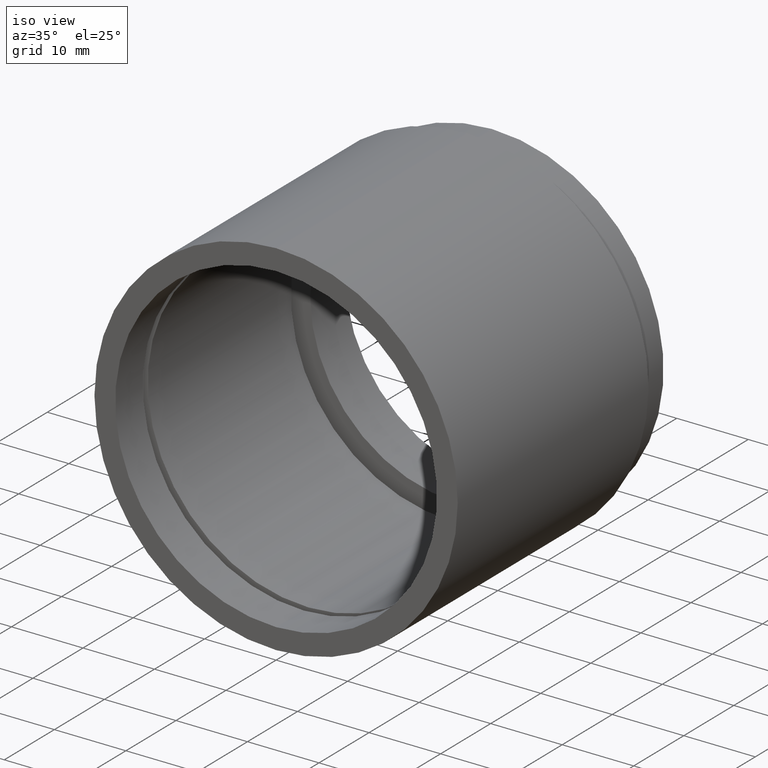
[diagram: clean part render]
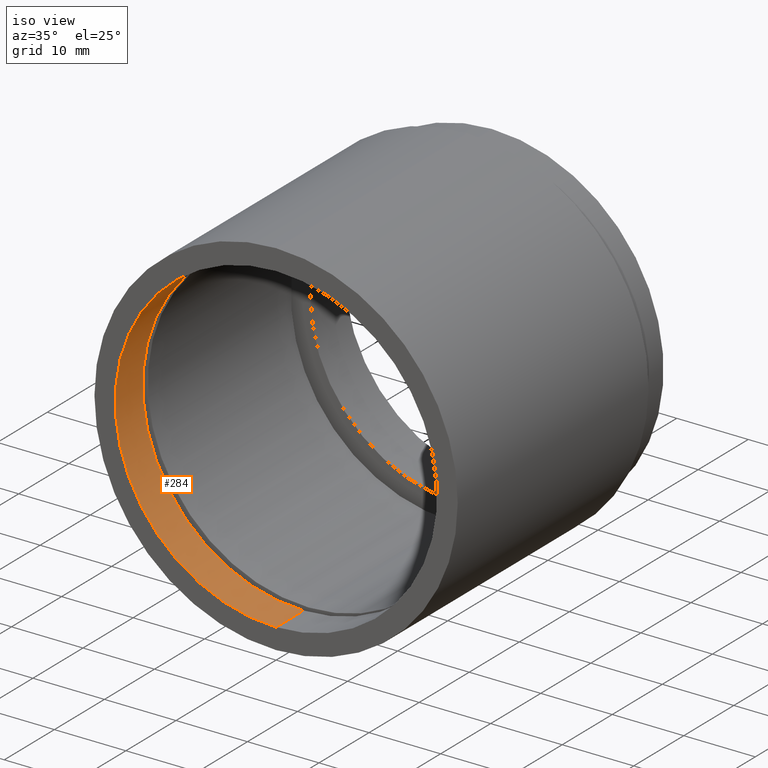
[diagram: same view with one face highlighted and labeled with its STEP entity id]
A machine part, iso view. The second image highlights one B-rep face of the part: STEP entity #284.
In plain terms, the highlighted cylindrical surface (partial cylindrical patch) has radius 22.5 mm, axis along (-0, 1, -0).
Its self-contained STEP definition (entity closure, byte-faithful):
#6 = CARTESIAN_POINT ( 'NONE',  ( 0.0000000000000000000, 5.499999999999976900, 22.50000000000002100 ) ) ;
#24 = ORIENTED_EDGE ( 'NONE', *, *, #218, .T. ) ;
#61 = VECTOR ( 'NONE', #613, 1000.000000000000000 ) ;
#77 = DIRECTION ( 'NONE',  ( -0.0000000000000000000, 1.000000000000000000, -0.0000000000000000000 ) ) ;
#96 = CARTESIAN_POINT ( 'NONE',  ( 0.0000000000000000000, 161.3761669434274500, 0.0000000000000000000 ) ) ;
#100 = LINE ( 'NONE', #370, #61 ) ;
#109 = CYLINDRICAL_SURFACE ( 'NONE', #361, 22.50000000000002100 ) ;
#187 = CARTESIAN_POINT ( 'NONE',  ( 2.755455298081547100E-015, -2.775557561562891400E-014, -22.50000000000002100 ) ) ;
#194 = EDGE_CURVE ( 'NONE', #586, #690, #373, .T. ) ;
#215 = CARTESIAN_POINT ( 'NONE',  ( 0.0000000000000000000, 5.499999999999976900, 0.0000000000000000000 ) ) ;
#218 = EDGE_CURVE ( 'NONE', #671, #586, #367, .T. ) ;
#244 = CARTESIAN_POINT ( 'NONE',  ( 2.755455298081547100E-015, 5.499999999999976900, -22.50000000000002100 ) ) ;
#259 = CARTESIAN_POINT ( 'NONE',  ( 0.0000000000000000000, -2.775557561562891400E-014, 0.0000000000000000000 ) ) ;
#264 = ORIENTED_EDGE ( 'NONE', *, *, #746, .F. ) ;
#276 = AXIS2_PLACEMENT_3D ( 'NONE', #259, #77, #392 ) ;
#283 = DIRECTION ( 'NONE',  ( -0.0000000000000000000, 1.000000000000000000, -0.0000000000000000000 ) ) ;
#284 = ADVANCED_FACE ( 'NONE', ( #571 ), #109, .F. ) ;
#291 = DIRECTION ( 'NONE',  ( -0.0000000000000000000, 1.000000000000000000, -0.0000000000000000000 ) ) ;
#327 = EDGE_LOOP ( 'NONE', ( #264, #24, #540, #691 ) ) ;
#361 = AXIS2_PLACEMENT_3D ( 'NONE', #96, #291, #665 ) ;
#367 = LINE ( 'NONE', #398, #672 ) ;
#369 = EDGE_CURVE ( 'NONE', #771, #690, #100, .T. ) ;
#370 = CARTESIAN_POINT ( 'NONE',  ( 0.0000000000000000000, 161.3761669434274500, 22.50000000000002100 ) ) ;
#373 = CIRCLE ( 'NONE', #589, 22.50000000000002100 ) ;
#392 = DIRECTION ( 'NONE',  ( 0.0000000000000000000, 0.0000000000000000000, 1.000000000000000000 ) ) ;
#398 = CARTESIAN_POINT ( 'NONE',  ( 2.755455298081547100E-015, 161.3761669434274500, -22.50000000000002100 ) ) ;
#449 = CARTESIAN_POINT ( 'NONE',  ( 0.0000000000000000000, -2.775557561562891400E-014, 22.50000000000002100 ) ) ;
#527 = DIRECTION ( 'NONE',  ( -0.0000000000000000000, 1.000000000000000000, -0.0000000000000000000 ) ) ;
#540 = ORIENTED_EDGE ( 'NONE', *, *, #194, .T. ) ;
#558 = CIRCLE ( 'NONE', #276, 22.50000000000002100 ) ;
#571 = FACE_OUTER_BOUND ( 'NONE', #327, .T. ) ;
#586 = VERTEX_POINT ( 'NONE', #244 ) ;
#589 = AXIS2_PLACEMENT_3D ( 'NONE', #215, #527, #650 ) ;
#613 = DIRECTION ( 'NONE',  ( -0.0000000000000000000, 1.000000000000000000, -0.0000000000000000000 ) ) ;
#650 = DIRECTION ( 'NONE',  ( 0.0000000000000000000, 0.0000000000000000000, 1.000000000000000000 ) ) ;
#665 = DIRECTION ( 'NONE',  ( 0.0000000000000000000, 0.0000000000000000000, 1.000000000000000000 ) ) ;
#671 = VERTEX_POINT ( 'NONE', #187 ) ;
#672 = VECTOR ( 'NONE', #283, 1000.000000000000000 ) ;
#690 = VERTEX_POINT ( 'NONE', #6 ) ;
#691 = ORIENTED_EDGE ( 'NONE', *, *, #369, .F. ) ;
#746 = EDGE_CURVE ( 'NONE', #671, #771, #558, .T. ) ;
#771 = VERTEX_POINT ( 'NONE', #449 ) ;